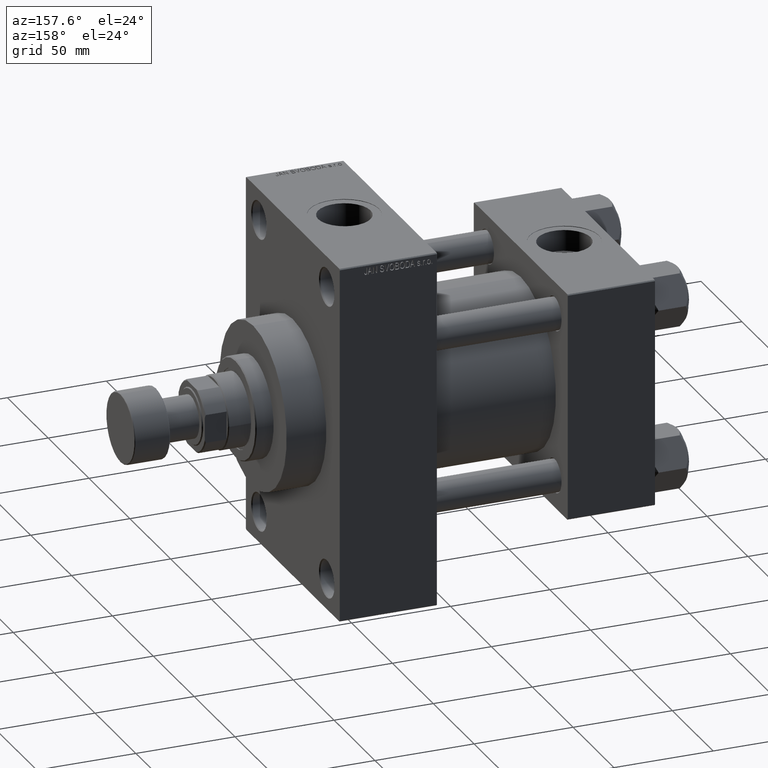
[diagram: clean part render]
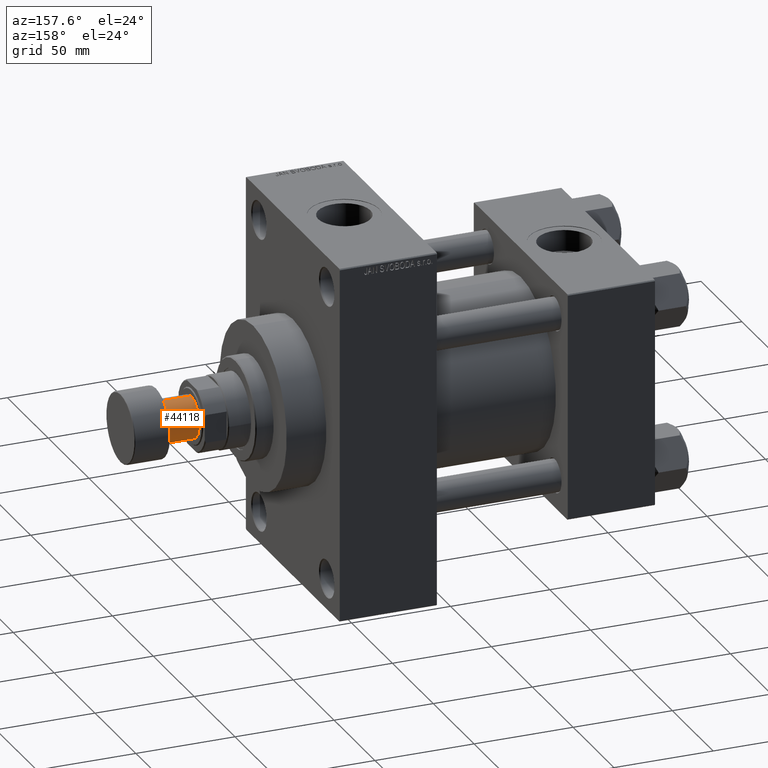
[diagram: same view with one face highlighted and labeled with its STEP entity id]
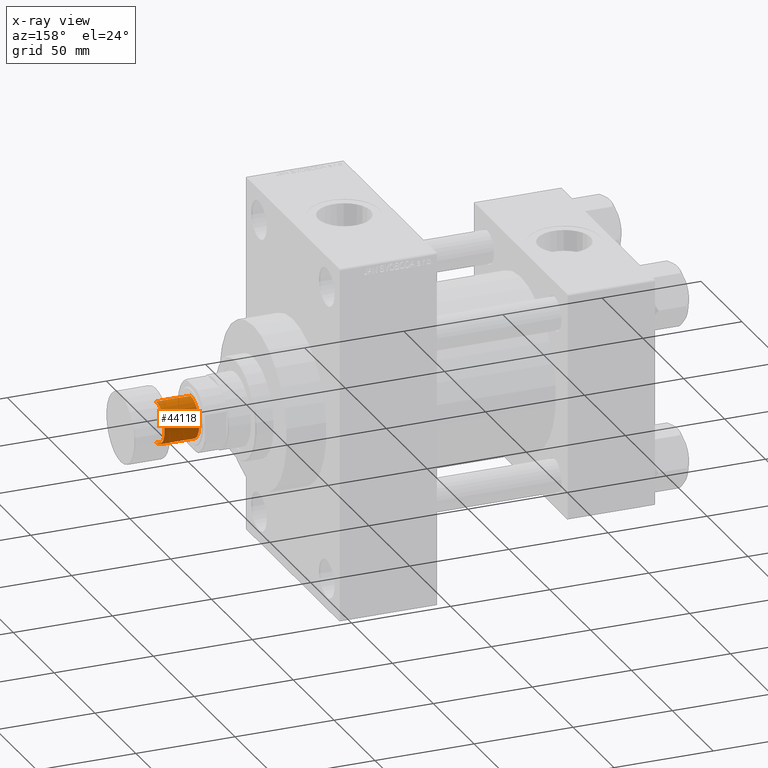
[diagram: x-ray of the same camera — body ghosted, the highlighted face saturated]
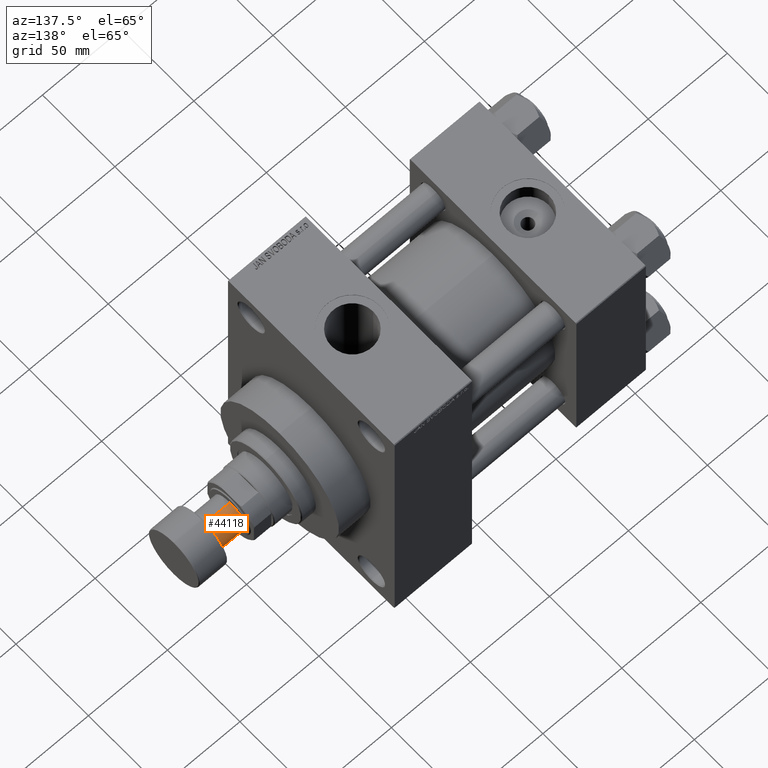
[diagram: same view with one face highlighted and labeled with its STEP entity id]
A machine part, auxiliary view. The second image highlights one B-rep face of the part: STEP entity #44118.
The next image is the same camera in x-ray: the body ghosted, the highlighted face saturated — about 0% of this face is hidden behind the body in this view.
A second angle (auxiliary view) of the same face is appended — the face is thin or edge-on in the first view.
In plain terms, the highlighted cylindrical surface (edge-blend (fillet) strip) has radius 10.5 mm, axis along (1, 0, 0).
Its self-contained STEP definition (entity closure, byte-faithful):
#924 = FACE_OUTER_BOUND ( 'NONE', #22647, .T. ) ;
#1298 = ORIENTED_EDGE ( 'NONE', *, *, #5324, .T. ) ;
#1489 = EDGE_CURVE ( 'NONE', #46670, #45934, #41701, .T. ) ;
#1868 = CIRCLE ( 'NONE', #15854, 10.50000000000000000 ) ;
#1972 = CARTESIAN_POINT ( 'NONE',  ( 10.50000000000000000, 0.000000000000000000, -35.50000000000000711 ) ) ;
#2139 = VERTEX_POINT ( 'NONE', #30914 ) ;
#2854 = CARTESIAN_POINT ( 'NONE',  ( 10.50000000000000000, 0.000000000000000000, -35.50000000000000711 ) ) ;
#3848 = DIRECTION ( 'NONE',  ( -0.000000000000000000, -0.000000000000000000, 1.000000000000000000 ) ) ;
#5181 = VERTEX_POINT ( 'NONE', #1972 ) ;
#5324 = EDGE_CURVE ( 'NONE', #2139, #46670, #35798, .T. ) ;
#5670 = DIRECTION ( 'NONE',  ( -1.000000000000000000, 0.000000000000000000, 0.000000000000000000 ) ) ;
#6145 = CARTESIAN_POINT ( 'NONE',  ( 0.000000000000000000, 0.000000000000000000, -35.50000000000000711 ) ) ;
#7263 = CYLINDRICAL_SURFACE ( 'NONE', #35072, 10.50000000000000000 ) ;
#7364 = ORIENTED_EDGE ( 'NONE', *, *, #28736, .F. ) ;
#11065 = ORIENTED_EDGE ( 'NONE', *, *, #21989, .F. ) ;
#12103 = DIRECTION ( 'NONE',  ( 1.000000000000000000, 0.000000000000000000, 0.000000000000000000 ) ) ;
#15787 = CARTESIAN_POINT ( 'NONE',  ( 10.50000000000000000, 0.000000000000000000, -18.00000000000000000 ) ) ;
#15854 = AXIS2_PLACEMENT_3D ( 'NONE', #6145, #35357, #5670 ) ;
#17952 = LINE ( 'NONE', #2854, #23822 ) ;
#18763 = DIRECTION ( 'NONE',  ( -0.000000000000000000, -0.000000000000000000, 1.000000000000000000 ) ) ;
#19299 = VECTOR ( 'NONE', #18763, 1000.000000000000000 ) ;
#20709 = AXIS2_PLACEMENT_3D ( 'NONE', #24691, #42945, #20789 ) ;
#20789 = DIRECTION ( 'NONE',  ( -1.000000000000000000, 0.000000000000000000, 0.000000000000000000 ) ) ;
#21989 = EDGE_CURVE ( 'NONE', #2139, #5181, #1868, .T. ) ;
#22647 = EDGE_LOOP ( 'NONE', ( #11065, #1298, #34106, #7364 ) ) ;
#23822 = VECTOR ( 'NONE', #28656, 1000.000000000000000 ) ;
#24691 = CARTESIAN_POINT ( 'NONE',  ( 0.000000000000000000, 0.000000000000000000, -18.00000000000000000 ) ) ;
#28656 = DIRECTION ( 'NONE',  ( -0.000000000000000000, -0.000000000000000000, 1.000000000000000000 ) ) ;
#28736 = EDGE_CURVE ( 'NONE', #5181, #45934, #17952, .T. ) ;
#29940 = CARTESIAN_POINT ( 'NONE',  ( -10.50000000000000000, 1.285879139104720831E-15, -35.50000000000000711 ) ) ;
#30914 = CARTESIAN_POINT ( 'NONE',  ( -10.50000000000000000, 1.285879139104720831E-15, -35.50000000000000711 ) ) ;
#34106 = ORIENTED_EDGE ( 'NONE', *, *, #1489, .T. ) ;
#35072 = AXIS2_PLACEMENT_3D ( 'NONE', #45220, #3848, #12103 ) ;
#35357 = DIRECTION ( 'NONE',  ( 0.000000000000000000, 0.000000000000000000, -1.000000000000000000 ) ) ;
#35798 = LINE ( 'NONE', #29940, #19299 ) ;
#40680 = CARTESIAN_POINT ( 'NONE',  ( -10.50000000000000000, 1.285879139104720831E-15, -18.00000000000000000 ) ) ;
#41701 = CIRCLE ( 'NONE', #20709, 10.50000000000000000 ) ;
#42945 = DIRECTION ( 'NONE',  ( 0.000000000000000000, 0.000000000000000000, -1.000000000000000000 ) ) ;
#44118 = ADVANCED_FACE ( 'NONE', ( #924 ), #7263, .T. ) ;
#45220 = CARTESIAN_POINT ( 'NONE',  ( 0.000000000000000000, 0.000000000000000000, -35.50000000000000711 ) ) ;
#45934 = VERTEX_POINT ( 'NONE', #15787 ) ;
#46670 = VERTEX_POINT ( 'NONE', #40680 ) ;